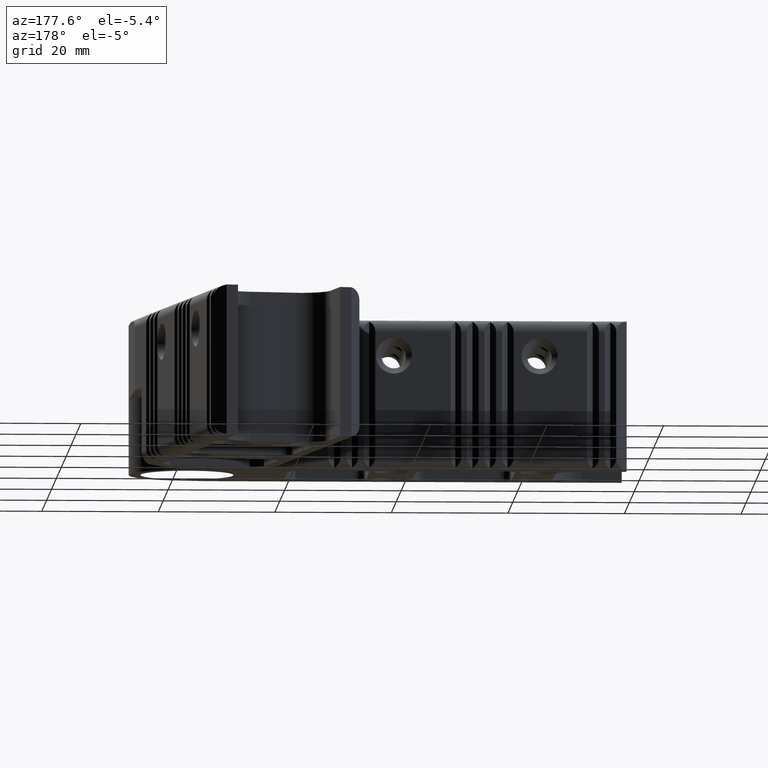
[diagram: clean part render]
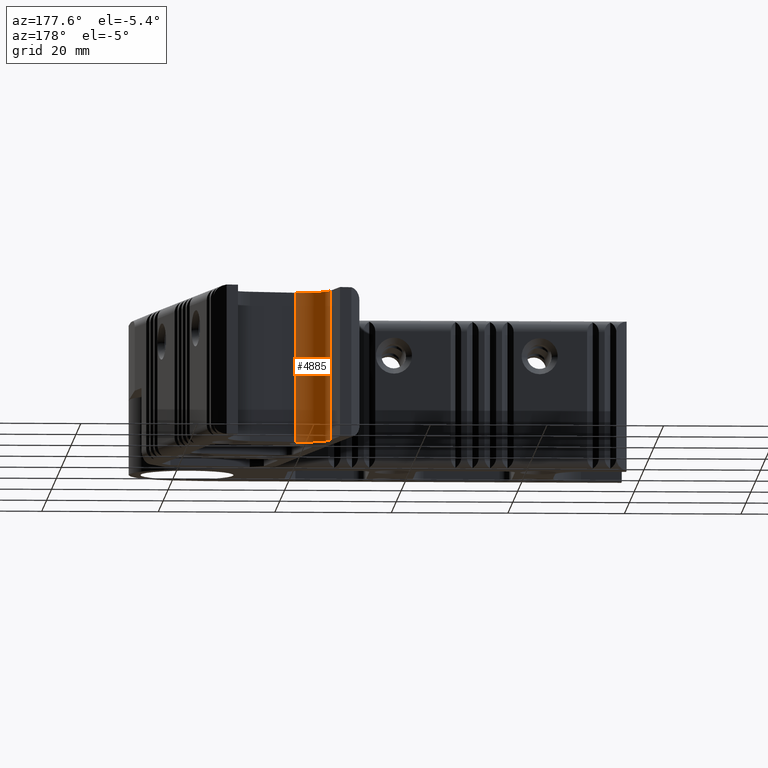
[diagram: same view with one face highlighted and labeled with its STEP entity id]
A machine part, auxiliary view. The second image highlights one B-rep face of the part: STEP entity #4885.
In plain terms, the highlighted cylindrical surface (edge-blend (fillet) strip) has radius 5 mm, axis along (-0, -0, 1).
Its self-contained STEP definition (entity closure, byte-faithful):
#468=CYLINDRICAL_SURFACE('',#5518,5.00000000000002);
#689=FACE_OUTER_BOUND('',#961,.T.);
#961=EDGE_LOOP('',(#4428,#4429,#4430,#4431));
#1355=LINE('',#8945,#1744);
#1356=LINE('',#8947,#1745);
#1744=VECTOR('',#7024,1000.);
#1745=VECTOR('',#7027,1000.);
#1895=CIRCLE('',#5355,5.00000000000002);
#1905=CIRCLE('',#5366,5.00000000000002);
#2245=VERTEX_POINT('',#8474);
#2246=VERTEX_POINT('',#8476);
#2275=VERTEX_POINT('',#8535);
#2276=VERTEX_POINT('',#8537);
#2900=EDGE_CURVE('',#2245,#2246,#1895,.T.);
#2930=EDGE_CURVE('',#2276,#2275,#1905,.T.);
#3136=EDGE_CURVE('',#2245,#2276,#1355,.T.);
#3137=EDGE_CURVE('',#2246,#2275,#1356,.T.);
#4428=ORIENTED_EDGE('',*,*,#2930,.T.);
#4429=ORIENTED_EDGE('',*,*,#3137,.F.);
#4430=ORIENTED_EDGE('',*,*,#2900,.F.);
#4431=ORIENTED_EDGE('',*,*,#3136,.T.);
#4885=ADVANCED_FACE('',(#689),#468,.F.);
#5355=AXIS2_PLACEMENT_3D('',#8477,#6561,#6562);
#5366=AXIS2_PLACEMENT_3D('',#8538,#6603,#6604);
#5518=AXIS2_PLACEMENT_3D('',#8946,#7025,#7026);
#6561=DIRECTION('center_axis',(5.0562042524128E-17,-6.52223638510904E-17,
-1.));
#6562=DIRECTION('ref_axis',(1.,3.29777593456298E-33,5.0562042524128E-17));
#6603=DIRECTION('center_axis',(5.0562042524128E-17,-6.52223638510904E-17,
-1.));
#6604=DIRECTION('ref_axis',(1.,6.59555186912597E-33,5.0562042524128E-17));
#7024=DIRECTION('',(5.05620425241281E-17,-6.52223638510904E-17,-1.));
#7025=DIRECTION('center_axis',(5.05620425241281E-17,-6.52223638510904E-17,
-1.));
#7026=DIRECTION('ref_axis',(-1.,-3.29777593456299E-33,-5.05620425241281E-17));
#7027=DIRECTION('',(5.05620425241281E-17,-6.52223638510904E-17,-1.));
#8474=CARTESIAN_POINT('',(-42.0143302673366,25.6958976643072,25.7000000000001));
#8476=CARTESIAN_POINT('',(-37.0143302673363,20.6958976643073,25.7000000000001));
#8477=CARTESIAN_POINT('Origin',(-42.0143302673365,20.6958976643071,25.7000000000001));
#8535=CARTESIAN_POINT('',(-37.0143302673361,20.6958976643069,0.));
#8537=CARTESIAN_POINT('',(-42.0143302673363,25.695897664307,0.));
#8538=CARTESIAN_POINT('Origin',(-42.0143302673368,20.6958976643069,0.));
#8945=CARTESIAN_POINT('',(-42.0143302673366,25.6958976643072,25.7000000000001));
#8946=CARTESIAN_POINT('Origin',(-42.0143302673365,20.6958976643071,25.7000000000001));
#8947=CARTESIAN_POINT('',(-37.0143302673363,20.6958976643073,25.7000000000001));